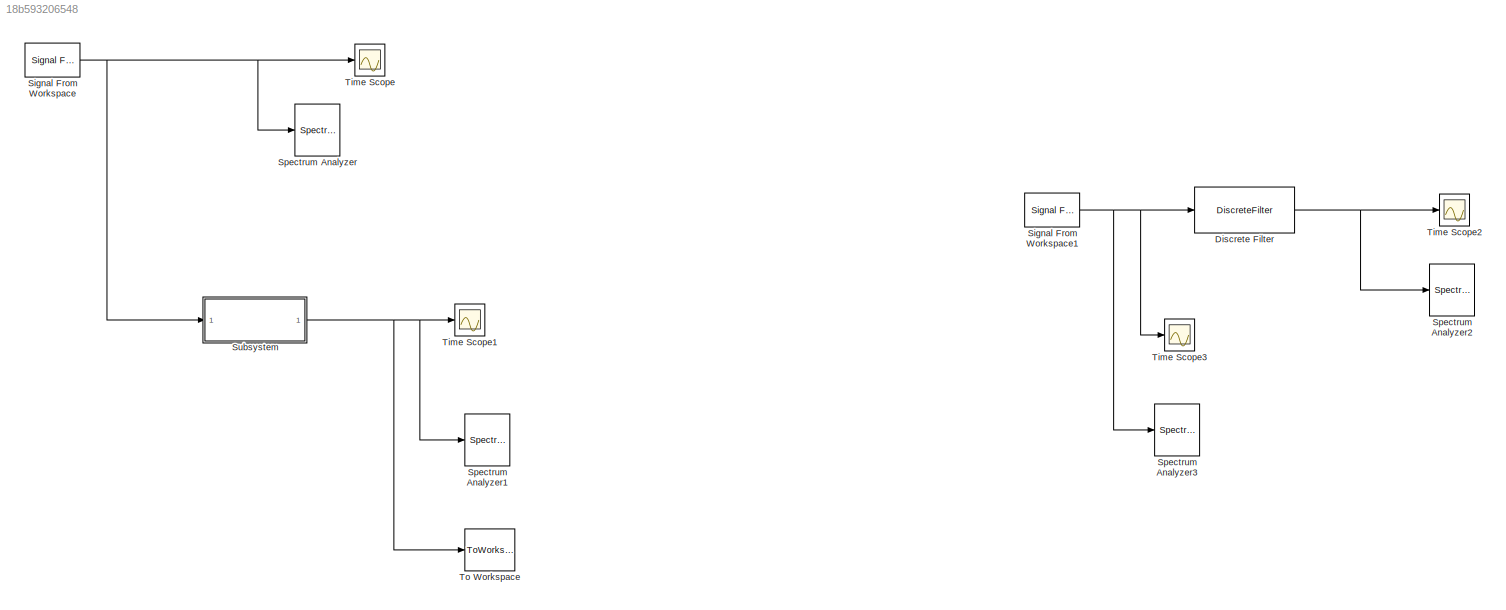
MODEL slx_18b593206548
KIND model
CONFIG AbsTol = auto
CONFIG EnableMultiTasking = off
CONFIG FixedStep = auto
CONFIG MaxStep = auto
CONFIG MinStep = auto
CONFIG RelTol = 1e-3
CONFIG SampleTimeConstraint = Unconstrained
CONFIG SolverName = FixedStepDiscrete
CONFIG StartTime = 0.0
CONFIG StopTime = 0.2
BLOCK [DiscreteFilter] Discrete Filter
  Denominator = a
  FilterStructure = Direct form II transposed
  InputPortMap = u0
  InputProcessing = Columns as channels (frame based)
  Numerator = b
  a0EqualsOne = on
BLOCK [Reference] Signal From Workspace  REF=dspsrcs4/Signal From
Workspace
  SourceBlock = dspsrcs4/Signal From\nWorkspace
  SourceType = Signal From Workspace
BLOCK [Reference] Signal From Workspace1  REF=dspsrcs4/Signal From
Workspace
  SourceBlock = dspsrcs4/Signal From\nWorkspace
  SourceType = Signal From Workspace
BLOCK [SpectrumAnalyzer] Spectrum Analyzer
  GraphicalSettings = {"GraphicalSettings":{"Style":{"BackgroundColor":[0.12941176470588237,0.12941176470588237,0.12941176470588237],"AxesColor":[0,0,0],"LabelsColor":[0.6862745098039216,0.6862745098039216,0.6862745098039216],"PreserveColors":false,"Visible":[true],"LineStyle":["-"],"LineColor":[[1,1,0.06666666666666667]],"LineWidth":[1.5],"Marker":["none"],"FontSize":"small"},"Cursors":{"Enabled":false,"XLocation":[2,...<+875ch>  <repeated x4 — deduplicated; at blocks: Spectrum Analyzer, Spectrum Analyzer1, Spectrum Analyzer2, Spectrum Analyzer3>
  ScopeFrameLocation = window
  ScopeSpecificationString = spbscopes.SpectrumAnalyzerBlockCfg('CurrentConfiguration', extmgr.ConfigurationSet(extmgr.Configuration('Core','General UI',true),extmgr.Configuration('Core','Source UI',true),extmgr.Configuration('Sources','WiredSimulink',true),extmgr.Configuration('Visuals','Spectrum',true,'AxesProperties',struct('Color',{[0 0 0],[0 0 0]},'XColor',{[0.686274509803922 0.686274509803922 0.686274509803922],[0.68627...<+1359ch>  <repeated x4 — deduplicated; at blocks: Spectrum Analyzer, Spectrum Analyzer1, Spectrum Analyzer2, Spectrum Analyzer3>
  SpectrumType = Power density
  SpectrumUnits = dBm/Hz
  WasSavedAsWebScope = on
  WindowPosition = [1485.000000,248.000000,1145.000000,792.000000,]
  YLimits = [-149.99904309,-42.95173174]
BLOCK [SpectrumAnalyzer] Spectrum Analyzer1
  ScopeFrameLocation = window
  SpectrumType = Power density
  SpectrumUnits = dBm/Hz
  WasSavedAsWebScope = on
  WindowPosition = [1026.000000,502.000000,858.000000,588.000000,]
  YLimits = [-220.48413424,-35.22615224]
BLOCK [SpectrumAnalyzer] Spectrum Analyzer2
  ScopeFrameLocation = window
  SpectrumType = Power density
  SpectrumUnits = dBm/Hz
  WasSavedAsWebScope = on
  WindowPosition = [854.000000,553.000000,800.000000,500.000000,]
  YLimits = [-213.92033927,-42.64464736]
BLOCK [SpectrumAnalyzer] Spectrum Analyzer3
  ScopeFrameLocation = window
  SpectrumType = Power density
  SpectrumUnits = dBm/Hz
  WasSavedAsWebScope = on
  WindowPosition = [2357.000000,290.000000,800.000000,500.000000,]
  YLimits = [-152.65022863,-49.34631593]
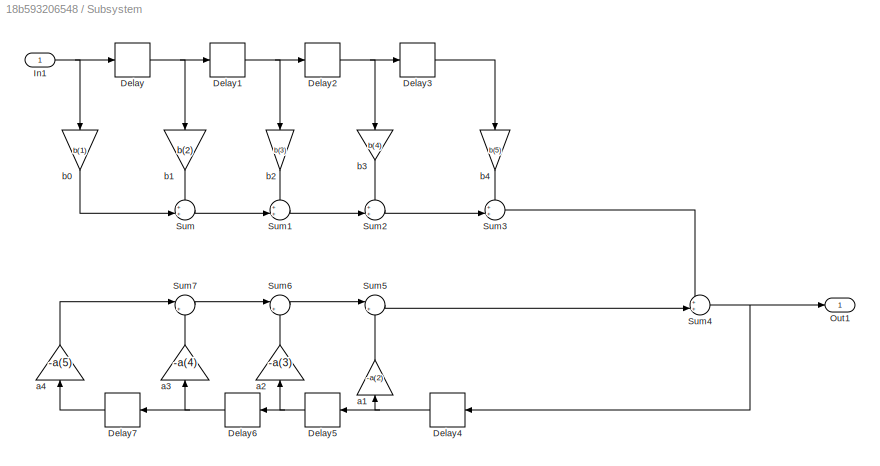
BLOCK [SubSystem] Subsystem
BLOCK [Delay] Subsystem/Delay
  DelayLength = 1
  InputPortMap = u0
BLOCK [Delay] Subsystem/Delay1
  DelayLength = 1
  InputPortMap = u0
BLOCK [Delay] Subsystem/Delay2
  DelayLength = 1
  InputPortMap = u0
BLOCK [Delay] Subsystem/Delay3
  DelayLength = 1
  InputPortMap = u0
BLOCK [Delay] Subsystem/Delay4
  DelayLength = 1
  InputPortMap = u0
  NameLocation = top
BLOCK [Delay] Subsystem/Delay5
  DelayLength = 1
  InputPortMap = u0
  NameLocation = top
BLOCK [Delay] Subsystem/Delay6
  DelayLength = 1
  InputPortMap = u0
  NameLocation = top
BLOCK [Delay] Subsystem/Delay7
  DelayLength = 1
  InputPortMap = u0
  NameLocation = top
BLOCK [Inport] Subsystem/In1
BLOCK [Outport] Subsystem/Out1
BLOCK [Sum] Subsystem/Sum
  Inputs = ++|
BLOCK [Sum] Subsystem/Sum1
  Inputs = ++|
BLOCK [Sum] Subsystem/Sum2
  Inputs = ++|
BLOCK [Sum] Subsystem/Sum3
  Inputs = ++|
BLOCK [Sum] Subsystem/Sum4
  Inputs = ++|
BLOCK [Sum] Subsystem/Sum5
  Inputs = |++
BLOCK [Sum] Subsystem/Sum6
  Inputs = |++
BLOCK [Sum] Subsystem/Sum7
  Inputs = |++
BLOCK [Gain] Subsystem/a1
  Gain = -a(2)
  NameLocation = right
BLOCK [Gain] Subsystem/a2
  Gain = -a(3)
  NameLocation = right
BLOCK [Gain] Subsystem/a3
  Gain = -a(4)
  NameLocation = right
BLOCK [Gain] Subsystem/a4
  Gain = -a(5)
  NameLocation = right
BLOCK [Gain] Subsystem/b0
  Gain = b(1)
  NameLocation = left
BLOCK [Gain] Subsystem/b1
  Gain = b(2)
  NameLocation = left
BLOCK [Gain] Subsystem/b2
  Gain = b(3)
  NameLocation = left
BLOCK [Gain] Subsystem/b3
  Gain = b(4)
  NameLocation = left
BLOCK [Gain] Subsystem/b4
  Gain = b(5)
  NameLocation = left
BLOCK [Scope] Time Scope
  DefaultConfigurationName = spbscopes.TimeScopeBlockCfg
  Floating = off
  NumInputPorts = 1
  ScopeSpecificationString = spbscopes.TimeScopeBlockCfg('CurrentConfiguration', extmgr.ConfigurationSet(extmgr.Configuration('Core','General UI',true),extmgr.Configuration('Core','Source UI',true),extmgr.Configuration('Sources','WiredSimulink',true),extmgr.Configuration('Visuals','Time Domain',true,'DisplayPropertyDefaults',struct('MinYLimReal','-2.61097','MaxYLimReal','2.62594','YLabelReal','Amplitude','MinYLimMag','0.00000...<+1415ch>
  UserDataPersistent = on
BLOCK [Scope] Time Scope1
  DefaultConfigurationName = spbscopes.TimeScopeBlockCfg
  Floating = off
  NumInputPorts = 1
  ScopeSpecificationString = spbscopes.TimeScopeBlockCfg('CurrentConfiguration', extmgr.ConfigurationSet(extmgr.Configuration('Core','General UI',true),extmgr.Configuration('Core','Source UI',true),extmgr.Configuration('Sources','WiredSimulink',true,'DataLoggingVariableName','ScopeData1'),extmgr.Configuration('Visuals','Time Domain',true,'DisplayPropertyDefaults',struct('MinYLimReal','-2.61097','MaxYLimReal','2.62594','YLabel...<+1438ch>
  UserDataPersistent = on
BLOCK [Scope] Time Scope2
  DefaultConfigurationName = spbscopes.TimeScopeBlockCfg
  Floating = off
  NumInputPorts = 1
  ScopeSpecificationString = spbscopes.TimeScopeBlockCfg('CurrentConfiguration', extmgr.ConfigurationSet(extmgr.Configuration('Core','General UI',true),extmgr.Configuration('Core','Source UI',true),extmgr.Configuration('Sources','WiredSimulink',true,'DataLoggingVariableName','ScopeData2'),extmgr.Configuration('Visuals','Time Domain',true,'DisplayPropertyDefaults',struct('MinYLimReal','-2.61097','MaxYLimReal','2.62594','YLabel...<+1447ch>
  UserDataPersistent = on
BLOCK [Scope] Time Scope3
  DefaultConfigurationName = spbscopes.TimeScopeBlockCfg
  Floating = off
  NumInputPorts = 1
  ScopeSpecificationString = spbscopes.TimeScopeBlockCfg('CurrentConfiguration', extmgr.ConfigurationSet(extmgr.Configuration('Core','General UI',true),extmgr.Configuration('Core','Source UI',true),extmgr.Configuration('Sources','WiredSimulink',true,'DataLoggingVariableName','ScopeData3'),extmgr.Configuration('Visuals','Time Domain',true,'DisplayPropertyDefaults',struct('MinYLimReal','-2.61097','MaxYLimReal','2.62594','YLabel...<+1451ch>
  UserDataPersistent = on
BLOCK [ToWorkspace] To Workspace
  MaxDataPoints = inf
  SampleTime = -1
  Save2DSignal = 2-D array (concatenate along first dimension)
  VariableName = yout
NET Discrete Filter:1 -> Spectrum Analyzer2:1, Time Scope2:1
NET Signal From Workspace1:1 -> Discrete Filter:1, Spectrum Analyzer3:1, Time Scope3:1
NET Signal From Workspace:1 -> Spectrum Analyzer:1, Subsystem:1, Time Scope:1
NET Subsystem/Delay1:1 -> Subsystem/Delay2:1, Subsystem/b2:1
NET Subsystem/Delay2:1 -> Subsystem/Delay3:1, Subsystem/b3:1
LINE Subsystem/Delay3:1 -> Subsystem/b4:1
NET Subsystem/Delay4:1 -> Subsystem/Delay5:1, Subsystem/a1:1
NET Subsystem/Delay5:1 -> Subsystem/Delay6:1, Subsystem/a2:1
NET Subsystem/Delay6:1 -> Subsystem/Delay7:1, Subsystem/a3:1
LINE Subsystem/Delay7:1 -> Subsystem/a4:1
NET Subsystem/Delay:1 -> Subsystem/Delay1:1, Subsystem/b1:1
NET Subsystem/In1:1 -> Subsystem/Delay:1, Subsystem/b0:1
LINE Subsystem/Sum1:1 -> Subsystem/Sum2:2
LINE Subsystem/Sum2:1 -> Subsystem/Sum3:2
LINE Subsystem/Sum3:1 -> Subsystem/Sum4:1
NET Subsystem/Sum4:1 -> Subsystem/Delay4:1, Subsystem/Out1:1
LINE Subsystem/Sum5:1 -> Subsystem/Sum4:2
LINE Subsystem/Sum6:1 -> Subsystem/Sum5:1
LINE Subsystem/Sum7:1 -> Subsystem/Sum6:1
LINE Subsystem/Sum:1 -> Subsystem/Sum1:2
LINE Subsystem/a1:1 -> Subsystem/Sum5:2
LINE Subsystem/a2:1 -> Subsystem/Sum6:2
LINE Subsystem/a3:1 -> Subsystem/Sum7:2
LINE Subsystem/a4:1 -> Subsystem/Sum7:1
LINE Subsystem/b0:1 -> Subsystem/Sum:2
LINE Subsystem/b1:1 -> Subsystem/Sum:1
LINE Subsystem/b2:1 -> Subsystem/Sum1:1
LINE Subsystem/b3:1 -> Subsystem/Sum2:1
LINE Subsystem/b4:1 -> Subsystem/Sum3:1
NET Subsystem:1 -> Spectrum Analyzer1:1, Time Scope1:1, To Workspace:1
note: NET lines group one-source signal fan-out (src -> all destinations, sorted); 1:1 wires keep LINE
